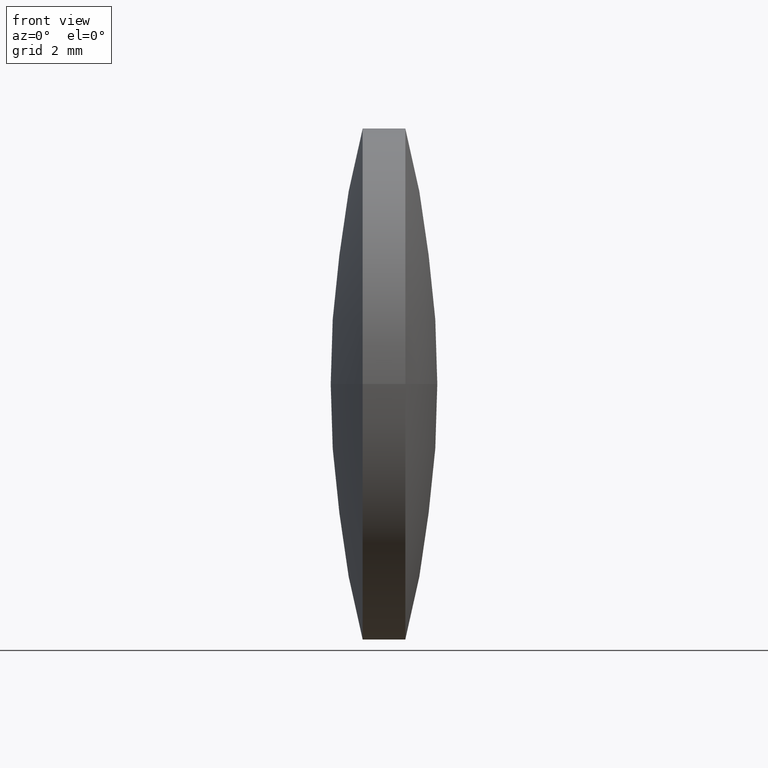
[diagram: clean part render]
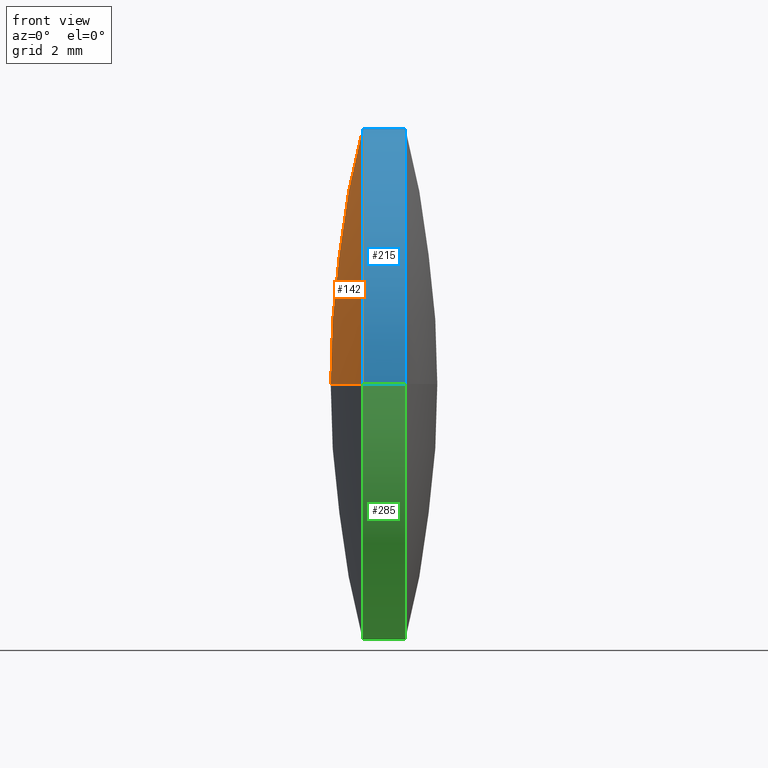
[diagram: same view with three faces highlighted in distinct colors, each labeled with its STEP entity id]
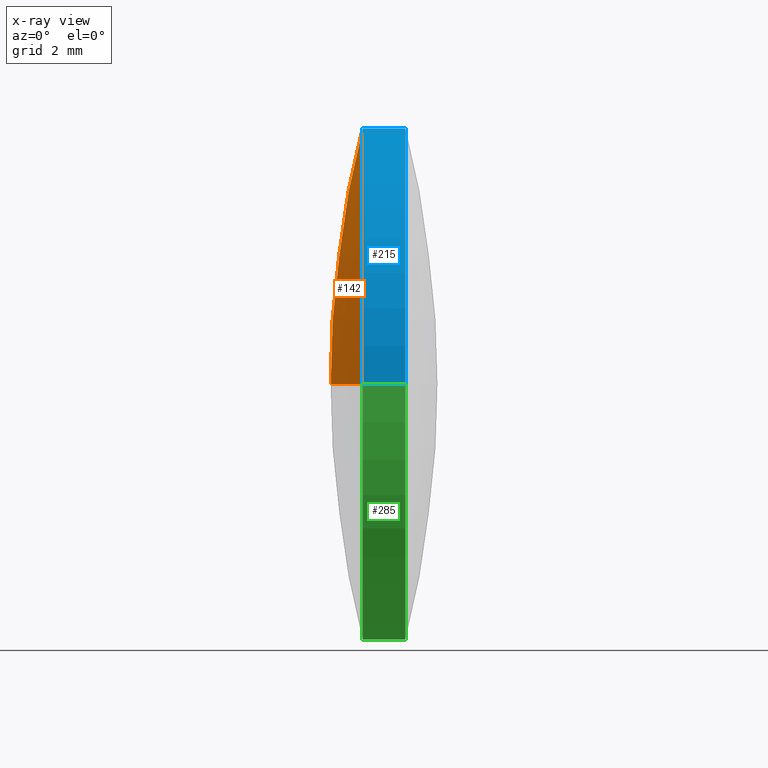
[diagram: x-ray of the same camera — body ghosted, the three highlighted faces saturated]
A machine part, front view with three faces highlighted in distinct colors.
The next image is the same camera in x-ray (body ghosted, the three faces saturated) — at least one of them is partly hidden behind the body in this view.
Their STEP definitions:

[orange] entity #142 — the highlighted spherical surface has radius 25.4301 mm.
#1 = DIRECTION ( 'NONE',  ( 0.0000000000000000000, -0.0000000000000000000, 1.000000000000000000 ) ) ;
#27 = SPHERICAL_SURFACE ( 'NONE', #272, 25.43006410256420900 ) ;
#35 = ORIENTED_EDGE ( 'NONE', *, *, #111, .F. ) ;
#40 = CIRCLE ( 'NONE', #115, 25.43006410256420900 ) ;
#43 = AXIS2_PLACEMENT_3D ( 'NONE', #166, #121, #96 ) ;
#44 = CIRCLE ( 'NONE', #214, 6.249999999999998200 ) ;
#46 = CARTESIAN_POINT ( 'NONE',  ( 42.02832370800324200, 23.92525247203977700, 0.0000000000000000000 ) ) ;
#47 = EDGE_CURVE ( 'NONE', #160, #117, #50, .T. ) ;
#49 = DIRECTION ( 'NONE',  ( 2.182894663866003600E-015, 1.000000000000000000, 0.0000000000000000000 ) ) ;
#50 = CIRCLE ( 'NONE', #43, 25.43006410256420900 ) ;
#69 = DIRECTION ( 'NONE',  ( 1.000000000000000000, -1.980143587423449700E-015, -0.0000000000000000000 ) ) ;
#95 = CARTESIAN_POINT ( 'NONE',  ( 41.24832370800325500, 23.92525247203982300, 0.0000000000000000000 ) ) ;
#96 = DIRECTION ( 'NONE',  ( -1.000000000000000000, 0.0000000000000000000, 0.0000000000000000000 ) ) ;
#100 = DIRECTION ( 'NONE',  ( 0.0000000000000000000, -1.000000000000000000, 1.224646799147353200E-016 ) ) ;
#101 = CARTESIAN_POINT ( 'NONE',  ( 42.02832370800322800, 17.67525247203977700, 7.654042494670959600E-016 ) ) ;
#111 = EDGE_CURVE ( 'NONE', #117, #253, #44, .T. ) ;
#115 = AXIS2_PLACEMENT_3D ( 'NONE', #265, #145, #100 ) ;
#117 = VERTEX_POINT ( 'NONE', #164 ) ;
#118 = DIRECTION ( 'NONE',  ( 2.220446049250313900E-015, 1.000000000000000000, 0.0000000000000000000 ) ) ;
#121 = DIRECTION ( 'NONE',  ( 0.0000000000000000000, 0.0000000000000000000, -1.000000000000000000 ) ) ;
#135 = EDGE_LOOP ( 'NONE', ( #249, #212, #35 ) ) ;
#142 = ADVANCED_FACE ( 'NONE', ( #254 ), #27, .T. ) ;
#145 = DIRECTION ( 'NONE',  ( 2.424976506190284800E-031, 1.224646799147353200E-016, 1.000000000000000000 ) ) ;
#160 = VERTEX_POINT ( 'NONE', #95 ) ;
#164 = CARTESIAN_POINT ( 'NONE',  ( 42.02832370800324900, 30.17525247203977700, 0.0000000000000000000 ) ) ;
#166 = CARTESIAN_POINT ( 'NONE',  ( 66.67838781056747200, 23.92525247203976900, 0.0000000000000000000 ) ) ;
#199 = EDGE_CURVE ( 'NONE', #160, #253, #40, .T. ) ;
#212 = ORIENTED_EDGE ( 'NONE', *, *, #199, .T. ) ;
#214 = AXIS2_PLACEMENT_3D ( 'NONE', #46, #69, #118 ) ;
#249 = ORIENTED_EDGE ( 'NONE', *, *, #47, .F. ) ;
#253 = VERTEX_POINT ( 'NONE', #101 ) ;
#254 = FACE_OUTER_BOUND ( 'NONE', #135, .T. ) ;
#265 = CARTESIAN_POINT ( 'NONE',  ( 66.67838781056747200, 23.92525247203976900, 0.0000000000000000000 ) ) ;
#272 = AXIS2_PLACEMENT_3D ( 'NONE', #282, #1, #49 ) ;
#282 = CARTESIAN_POINT ( 'NONE',  ( 66.67838781056747200, 23.92525247203976900, 0.0000000000000000000 ) ) ;

[blue] entity #215 — the highlighted cylindrical surface (partial cylindrical patch) has radius 6.25 mm, axis along (1, -0, -0).
#8 = CARTESIAN_POINT ( 'NONE',  ( 45.14302203992006200, 23.92525247203976900, 0.0000000000000000000 ) ) ;
#10 = EDGE_CURVE ( 'NONE', #253, #110, #147, .T. ) ;
#12 = ORIENTED_EDGE ( 'NONE', *, *, #111, .T. ) ;
#18 = ORIENTED_EDGE ( 'NONE', *, *, #10, .T. ) ;
#25 = DIRECTION ( 'NONE',  ( 1.000000000000000000, -1.980143587423449700E-015, -0.0000000000000000000 ) ) ;
#28 = EDGE_CURVE ( 'NONE', #117, #67, #268, .T. ) ;
#44 = CIRCLE ( 'NONE', #214, 6.249999999999998200 ) ;
#46 = CARTESIAN_POINT ( 'NONE',  ( 42.02832370800324200, 23.92525247203977700, 0.0000000000000000000 ) ) ;
#51 = DIRECTION ( 'NONE',  ( 2.220446049250312300E-015, 1.000000000000000000, 0.0000000000000000000 ) ) ;
#54 = ORIENTED_EDGE ( 'NONE', *, *, #105, .F. ) ;
#67 = VERTEX_POINT ( 'NONE', #286 ) ;
#69 = DIRECTION ( 'NONE',  ( 1.000000000000000000, -1.980143587423449700E-015, -0.0000000000000000000 ) ) ;
#70 = AXIS2_PLACEMENT_3D ( 'NONE', #191, #237, #51 ) ;
#71 = VECTOR ( 'NONE', #25, 1000.000000000000000 ) ;
#87 = VECTOR ( 'NONE', #119, 1000.000000000000000 ) ;
#93 = AXIS2_PLACEMENT_3D ( 'NONE', #8, #288, #126 ) ;
#94 = EDGE_LOOP ( 'NONE', ( #12, #18, #54, #239 ) ) ;
#101 = CARTESIAN_POINT ( 'NONE',  ( 42.02832370800322800, 17.67525247203977700, 7.654042494670959600E-016 ) ) ;
#105 = EDGE_CURVE ( 'NONE', #67, #110, #183, .T. ) ;
#110 = VERTEX_POINT ( 'NONE', #123 ) ;
#111 = EDGE_CURVE ( 'NONE', #117, #253, #44, .T. ) ;
#117 = VERTEX_POINT ( 'NONE', #164 ) ;
#118 = DIRECTION ( 'NONE',  ( 2.220446049250313900E-015, 1.000000000000000000, 0.0000000000000000000 ) ) ;
#119 = DIRECTION ( 'NONE',  ( 1.000000000000000000, -1.980143587423449700E-015, -0.0000000000000000000 ) ) ;
#123 = CARTESIAN_POINT ( 'NONE',  ( 43.06832370800323400, 17.67525247203972000, 7.654042494670971400E-016 ) ) ;
#126 = DIRECTION ( 'NONE',  ( 2.220446049250313900E-015, 1.000000000000000000, 0.0000000000000000000 ) ) ;
#147 = LINE ( 'NONE', #161, #87 ) ;
#161 = CARTESIAN_POINT ( 'NONE',  ( 45.14302203992004800, 17.67525247203976900, 7.654042494670957600E-016 ) ) ;
#164 = CARTESIAN_POINT ( 'NONE',  ( 42.02832370800324900, 30.17525247203977700, 0.0000000000000000000 ) ) ;
#183 = CIRCLE ( 'NONE', #70, 6.250000000000001800 ) ;
#191 = CARTESIAN_POINT ( 'NONE',  ( 43.06832370800324100, 23.92525247203977300, 0.0000000000000000000 ) ) ;
#214 = AXIS2_PLACEMENT_3D ( 'NONE', #46, #69, #118 ) ;
#215 = ADVANCED_FACE ( 'NONE', ( #280 ), #217, .T. ) ;
#217 = CYLINDRICAL_SURFACE ( 'NONE', #93, 6.249999999999998200 ) ;
#237 = DIRECTION ( 'NONE',  ( 1.000000000000000000, -1.980143587423449700E-015, -0.0000000000000000000 ) ) ;
#239 = ORIENTED_EDGE ( 'NONE', *, *, #28, .F. ) ;
#253 = VERTEX_POINT ( 'NONE', #101 ) ;
#258 = CARTESIAN_POINT ( 'NONE',  ( 45.14302203992007600, 30.17525247203976900, 0.0000000000000000000 ) ) ;
#268 = LINE ( 'NONE', #258, #71 ) ;
#280 = FACE_OUTER_BOUND ( 'NONE', #94, .T. ) ;
#286 = CARTESIAN_POINT ( 'NONE',  ( 43.06832370800325500, 30.17525247203978400, 0.0000000000000000000 ) ) ;
#288 = DIRECTION ( 'NONE',  ( 1.000000000000000000, -1.980143587423449700E-015, -0.0000000000000000000 ) ) ;

[green] entity #285 — the highlighted cylindrical surface (partial cylindrical patch) has radius 6.25 mm, axis along (1, -0, -0).
#5 = AXIS2_PLACEMENT_3D ( 'NONE', #32, #196, #224 ) ;
#10 = EDGE_CURVE ( 'NONE', #253, #110, #147, .T. ) ;
#25 = DIRECTION ( 'NONE',  ( 1.000000000000000000, -1.980143587423449700E-015, -0.0000000000000000000 ) ) ;
#28 = EDGE_CURVE ( 'NONE', #117, #67, #268, .T. ) ;
#31 = CIRCLE ( 'NONE', #5, 6.249999999999998200 ) ;
#32 = CARTESIAN_POINT ( 'NONE',  ( 42.02832370800324200, 23.92525247203977700, 0.0000000000000000000 ) ) ;
#48 = ORIENTED_EDGE ( 'NONE', *, *, #10, .F. ) ;
#67 = VERTEX_POINT ( 'NONE', #286 ) ;
#71 = VECTOR ( 'NONE', #25, 1000.000000000000000 ) ;
#75 = CARTESIAN_POINT ( 'NONE',  ( 45.14302203992006200, 23.92525247203976900, 0.0000000000000000000 ) ) ;
#87 = VECTOR ( 'NONE', #119, 1000.000000000000000 ) ;
#89 = AXIS2_PLACEMENT_3D ( 'NONE', #267, #172, #289 ) ;
#101 = CARTESIAN_POINT ( 'NONE',  ( 42.02832370800322800, 17.67525247203977700, 7.654042494670959600E-016 ) ) ;
#110 = VERTEX_POINT ( 'NONE', #123 ) ;
#117 = VERTEX_POINT ( 'NONE', #164 ) ;
#119 = DIRECTION ( 'NONE',  ( 1.000000000000000000, -1.980143587423449700E-015, -0.0000000000000000000 ) ) ;
#123 = CARTESIAN_POINT ( 'NONE',  ( 43.06832370800323400, 17.67525247203972000, 7.654042494670971400E-016 ) ) ;
#141 = ORIENTED_EDGE ( 'NONE', *, *, #158, .T. ) ;
#147 = LINE ( 'NONE', #161, #87 ) ;
#152 = CIRCLE ( 'NONE', #89, 6.250000000000001800 ) ;
#158 = EDGE_CURVE ( 'NONE', #253, #117, #31, .T. ) ;
#161 = CARTESIAN_POINT ( 'NONE',  ( 45.14302203992004800, 17.67525247203976900, 7.654042494670957600E-016 ) ) ;
#164 = CARTESIAN_POINT ( 'NONE',  ( 42.02832370800324900, 30.17525247203977700, 0.0000000000000000000 ) ) ;
#168 = DIRECTION ( 'NONE',  ( 1.000000000000000000, -1.980143587423449700E-015, -0.0000000000000000000 ) ) ;
#170 = ORIENTED_EDGE ( 'NONE', *, *, #276, .F. ) ;
#172 = DIRECTION ( 'NONE',  ( 1.000000000000000000, -1.980143587423449700E-015, -0.0000000000000000000 ) ) ;
#196 = DIRECTION ( 'NONE',  ( 1.000000000000000000, -1.980143587423449700E-015, -0.0000000000000000000 ) ) ;
#206 = EDGE_LOOP ( 'NONE', ( #48, #141, #304, #170 ) ) ;
#209 = CYLINDRICAL_SURFACE ( 'NONE', #291, 6.249999999999998200 ) ;
#218 = DIRECTION ( 'NONE',  ( 2.220446049250313900E-015, 1.000000000000000000, 0.0000000000000000000 ) ) ;
#224 = DIRECTION ( 'NONE',  ( 2.220446049250313900E-015, 1.000000000000000000, 0.0000000000000000000 ) ) ;
#228 = FACE_OUTER_BOUND ( 'NONE', #206, .T. ) ;
#253 = VERTEX_POINT ( 'NONE', #101 ) ;
#258 = CARTESIAN_POINT ( 'NONE',  ( 45.14302203992007600, 30.17525247203976900, 0.0000000000000000000 ) ) ;
#267 = CARTESIAN_POINT ( 'NONE',  ( 43.06832370800324100, 23.92525247203977300, 0.0000000000000000000 ) ) ;
#268 = LINE ( 'NONE', #258, #71 ) ;
#276 = EDGE_CURVE ( 'NONE', #110, #67, #152, .T. ) ;
#285 = ADVANCED_FACE ( 'NONE', ( #228 ), #209, .T. ) ;
#286 = CARTESIAN_POINT ( 'NONE',  ( 43.06832370800325500, 30.17525247203978400, 0.0000000000000000000 ) ) ;
#289 = DIRECTION ( 'NONE',  ( 2.220446049250312300E-015, 1.000000000000000000, 0.0000000000000000000 ) ) ;
#291 = AXIS2_PLACEMENT_3D ( 'NONE', #75, #168, #218 ) ;
#304 = ORIENTED_EDGE ( 'NONE', *, *, #28, .T. ) ;